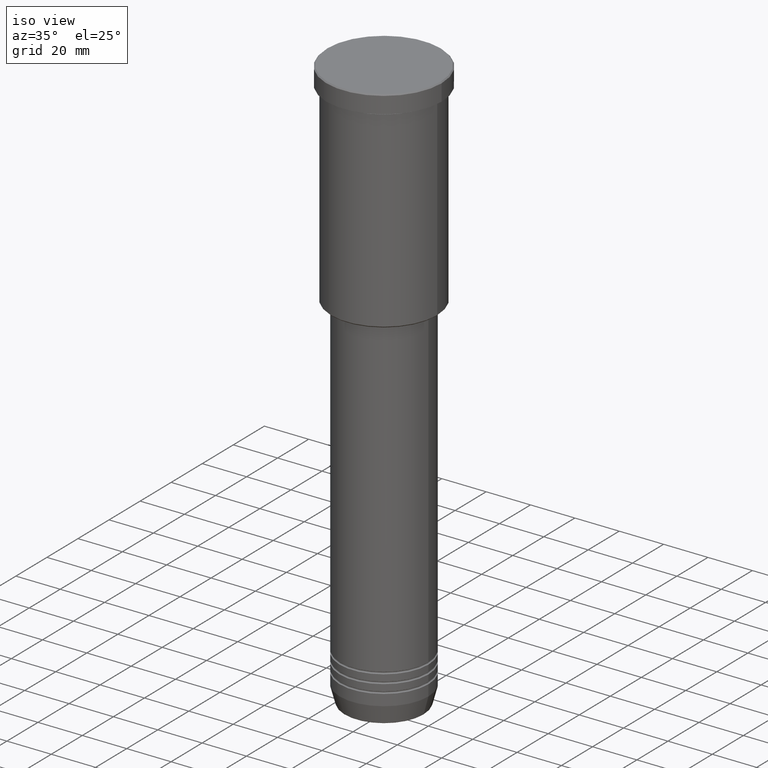
[diagram: clean part render]
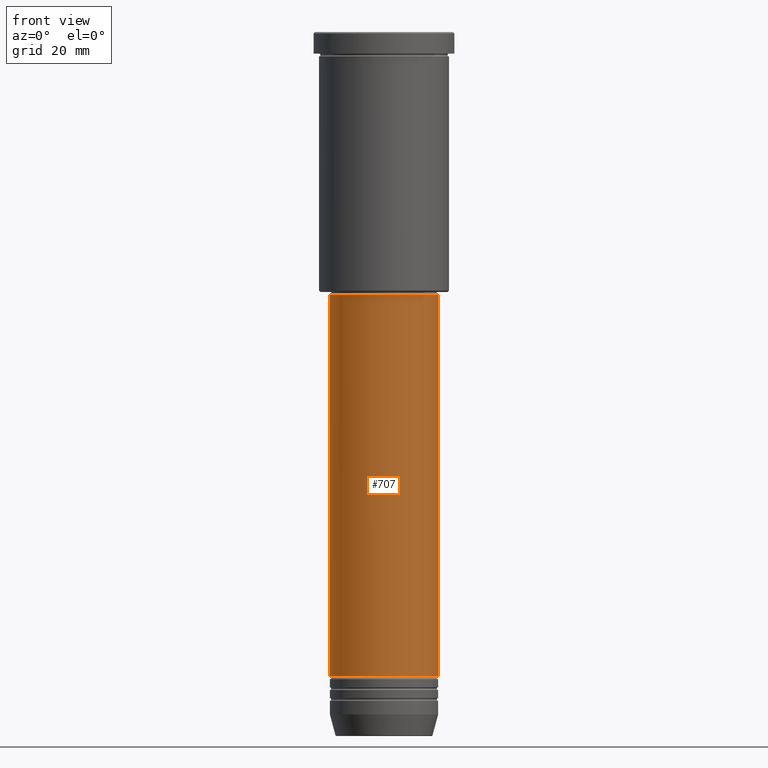
[diagram: tour spotlight — one face highlighted and labeled with its STEP entity id]
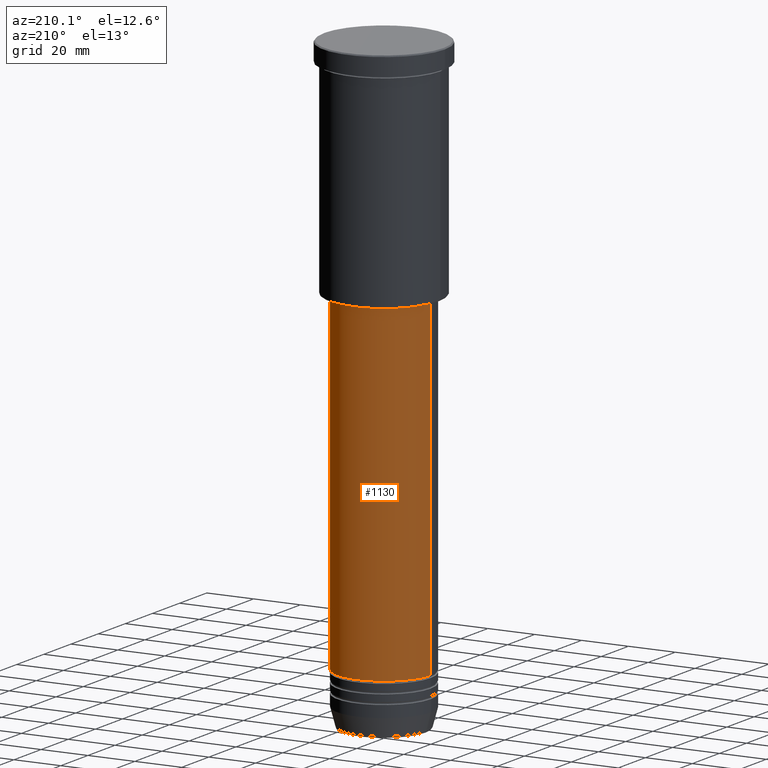
[diagram: tour spotlight — one face highlighted and labeled with its STEP entity id]
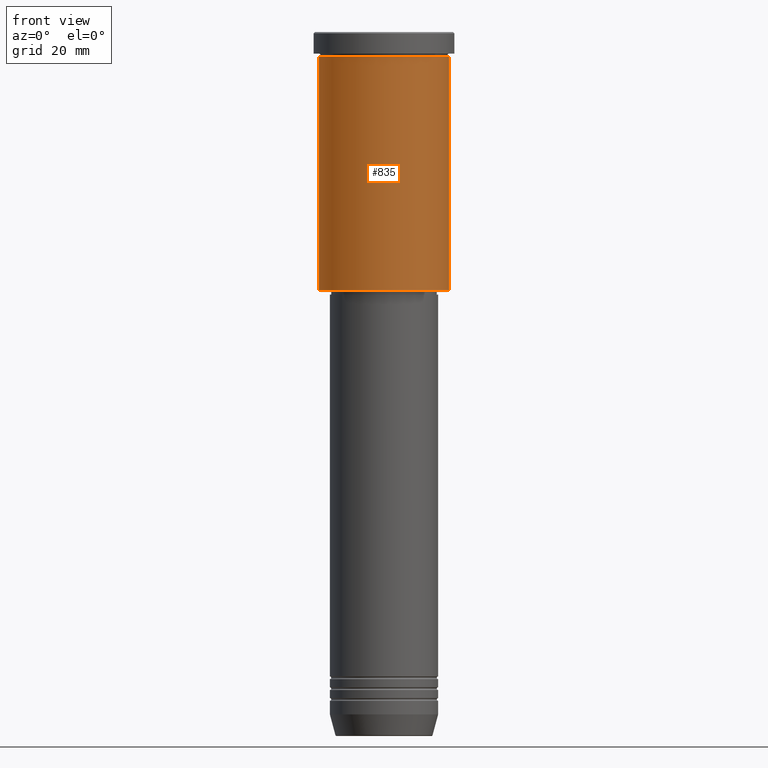
[diagram: tour spotlight — one face highlighted and labeled with its STEP entity id]
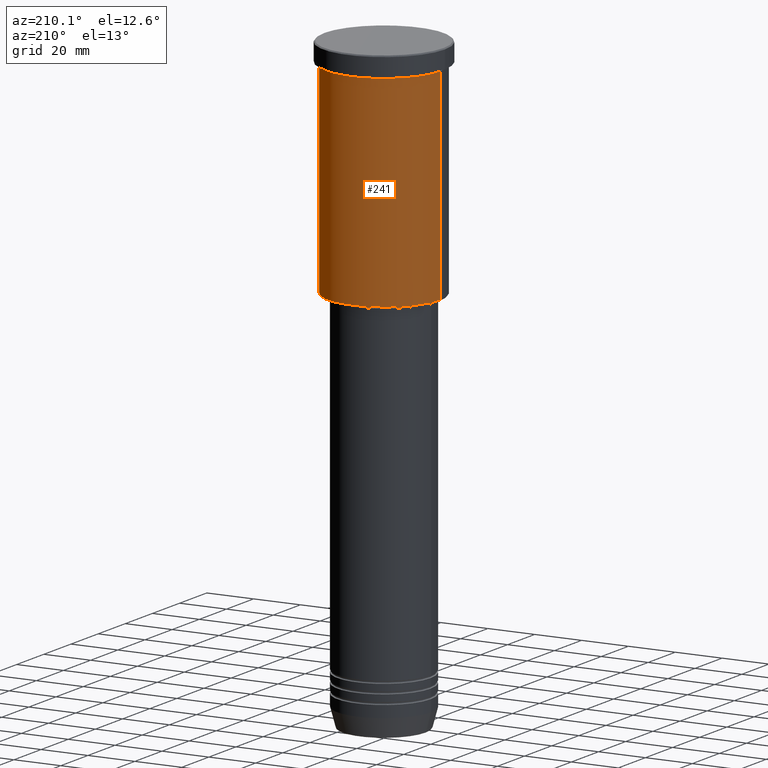
[diagram: tour spotlight — one face highlighted and labeled with its STEP entity id]
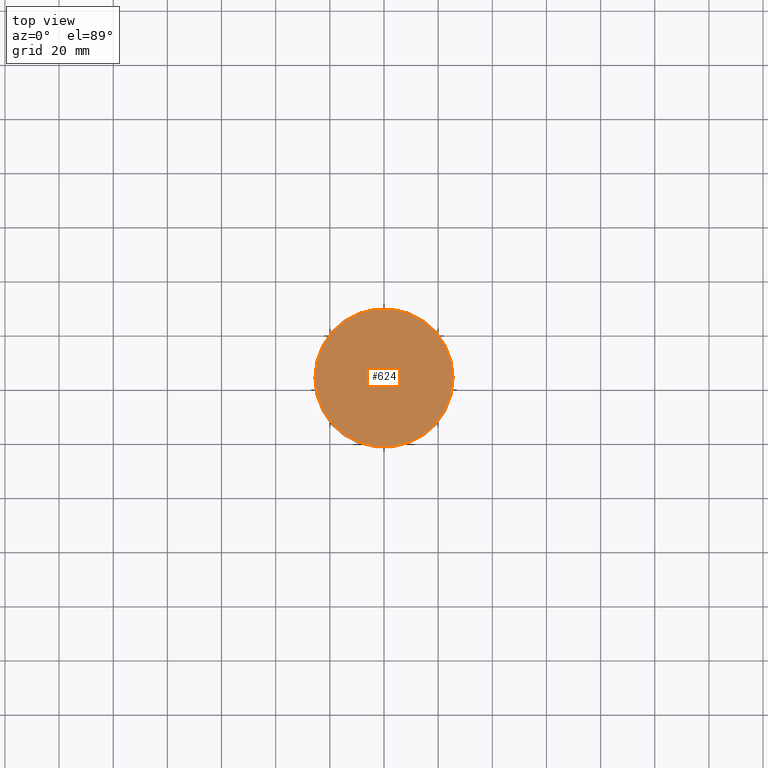
[diagram: tour spotlight — one face highlighted and labeled with its STEP entity id]
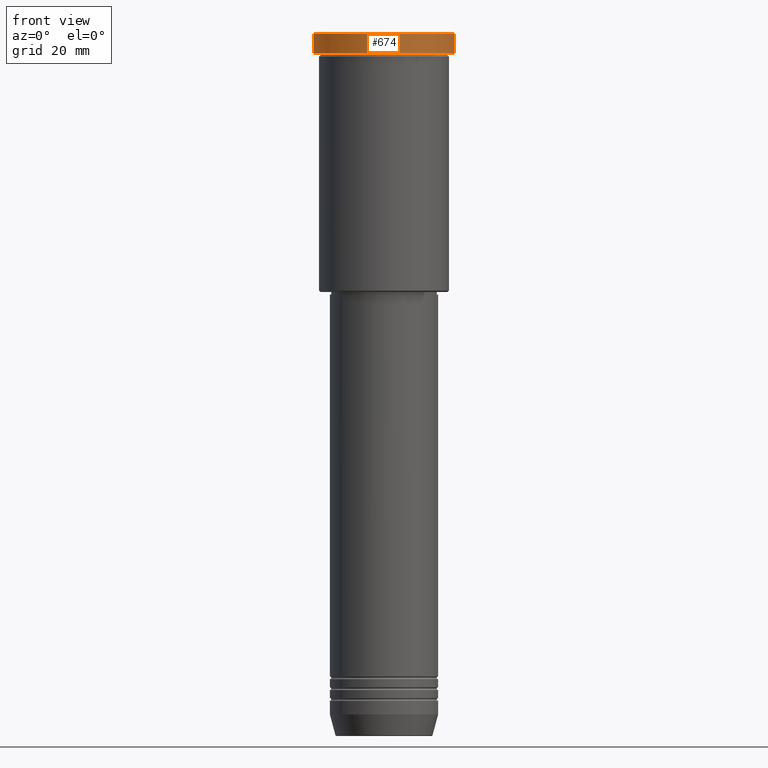
[diagram: tour spotlight — one face highlighted and labeled with its STEP entity id]
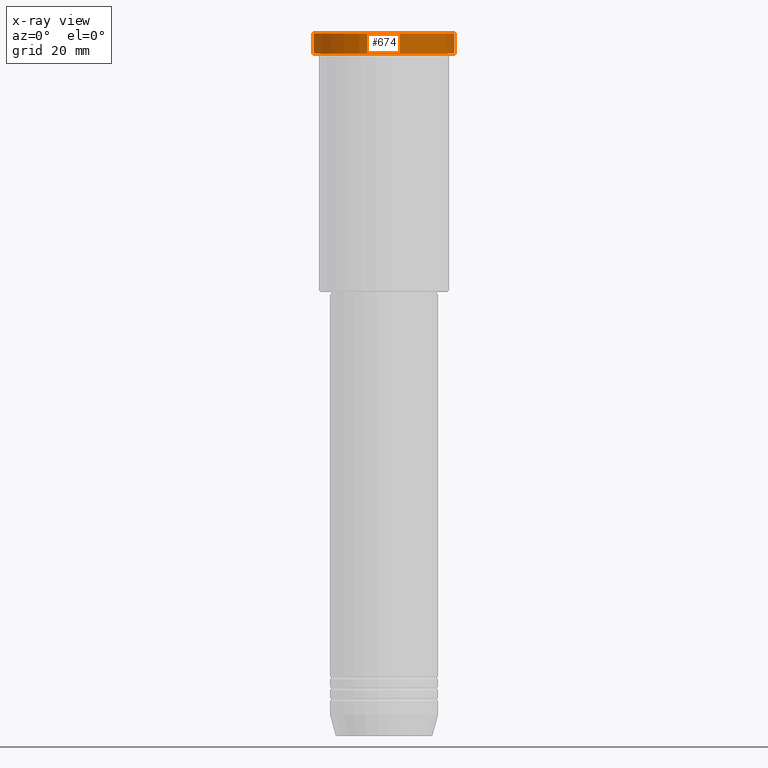
[diagram: x-ray of the same camera — body ghosted, this tour face saturated]
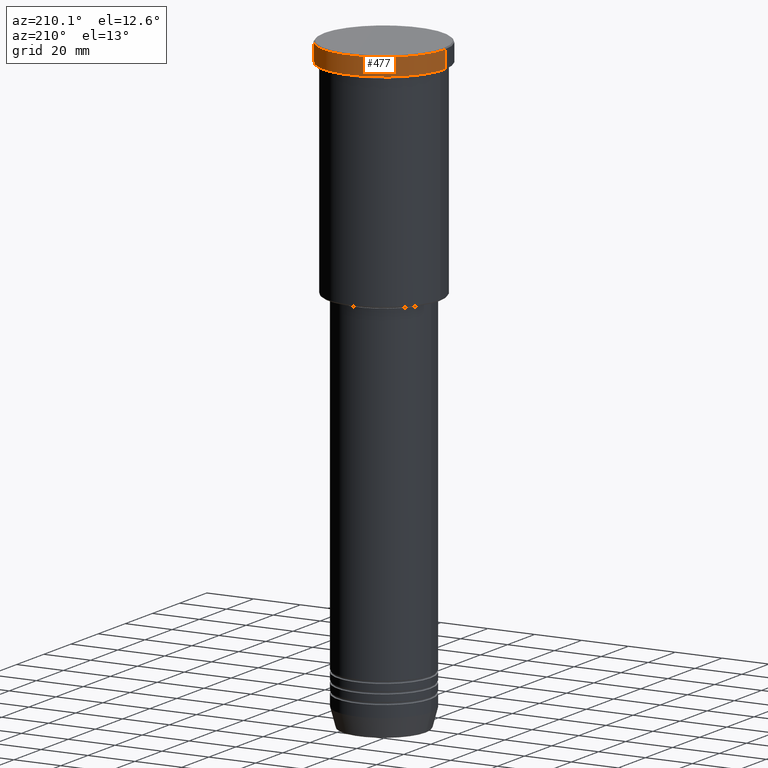
[diagram: tour spotlight — one face highlighted and labeled with its STEP entity id]
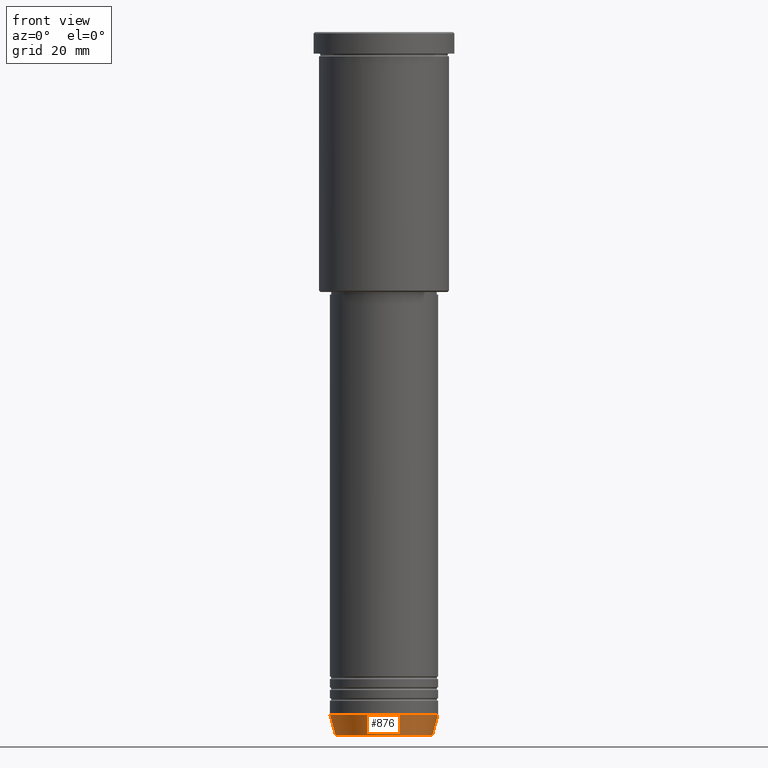
[diagram: tour spotlight — one face highlighted and labeled with its STEP entity id]
A machine part: a face-by-face anatomy tour. The part has 43 B-rep faces; the first image is the clean iso view, then the 8 largest visible faces are spotlighted one at a time (largest first), each with its STEP entity span.

Face 1 — front view, entity #707. In plain terms, the highlighted cylindrical surface (partial cylindrical patch) has radius 20 mm, axis along (-0, -0, 1).
Definition (entity closure, byte-faithful):
#15 = ORIENTED_EDGE ( 'NONE', *, *, #819, .T. ) ;
#46 = DIRECTION ( 'NONE',  ( -0.000000000000000000, -0.000000000000000000, 1.000000000000000000 ) ) ;
#66 = VECTOR ( 'NONE', #617, 1000.000000000000000 ) ;
#104 = ORIENTED_EDGE ( 'NONE', *, *, #726, .F. ) ;
#134 = CARTESIAN_POINT ( 'NONE',  ( 20.00000000000000355, 0.000000000000000000, -238.0000000000000000 ) ) ;
#146 = CARTESIAN_POINT ( 'NONE',  ( -20.00000000000000355, 2.449293598294706907E-15, 0.000000000000000000 ) ) ;
#149 = VERTEX_POINT ( 'NONE', #290 ) ;
#162 = EDGE_LOOP ( 'NONE', ( #622, #15, #245, #104 ) ) ;
#167 = CARTESIAN_POINT ( 'NONE',  ( 0.000000000000000000, 0.000000000000000000, 0.000000000000000000 ) ) ;
#172 = VERTEX_POINT ( 'NONE', #134 ) ;
#201 = CARTESIAN_POINT ( 'NONE',  ( -20.00000000000000355, 2.449293598294706907E-15, -97.00000000000002842 ) ) ;
#245 = ORIENTED_EDGE ( 'NONE', *, *, #1139, .T. ) ;
#251 = CIRCLE ( 'NONE', #504, 20.00000000000000355 ) ;
#290 = CARTESIAN_POINT ( 'NONE',  ( -20.00000000000000355, 2.449293598294706907E-15, -238.0000000000000000 ) ) ;
#346 = CARTESIAN_POINT ( 'NONE',  ( 20.00000000000000355, 0.000000000000000000, 0.000000000000000000 ) ) ;
#443 = AXIS2_PLACEMENT_3D ( 'NONE', #167, #451, #743 ) ;
#451 = DIRECTION ( 'NONE',  ( -0.000000000000000000, -0.000000000000000000, 1.000000000000000000 ) ) ;
#462 = DIRECTION ( 'NONE',  ( -0.000000000000000000, -0.000000000000000000, 1.000000000000000000 ) ) ;
#504 = AXIS2_PLACEMENT_3D ( 'NONE', #821, #462, #727 ) ;
#613 = CIRCLE ( 'NONE', #924, 20.00000000000000355 ) ;
#617 = DIRECTION ( 'NONE',  ( -0.000000000000000000, -0.000000000000000000, 1.000000000000000000 ) ) ;
#622 = ORIENTED_EDGE ( 'NONE', *, *, #1056, .F. ) ;
#639 = CYLINDRICAL_SURFACE ( 'NONE', #443, 20.00000000000000355 ) ;
#642 = LINE ( 'NONE', #346, #66 ) ;
#707 = ADVANCED_FACE ( 'NONE', ( #919 ), #639, .T. ) ;
#726 = EDGE_CURVE ( 'NONE', #905, #773, #251, .T. ) ;
#727 = DIRECTION ( 'NONE',  ( 1.000000000000000000, 0.000000000000000000, 0.000000000000000000 ) ) ;
#743 = DIRECTION ( 'NONE',  ( 1.000000000000000000, 0.000000000000000000, 0.000000000000000000 ) ) ;
#773 = VERTEX_POINT ( 'NONE', #1078 ) ;
#819 = EDGE_CURVE ( 'NONE', #149, #172, #613, .T. ) ;
#821 = CARTESIAN_POINT ( 'NONE',  ( 0.000000000000000000, 0.000000000000000000, -97.00000000000002842 ) ) ;
#844 = CARTESIAN_POINT ( 'NONE',  ( 0.000000000000000000, 0.000000000000000000, -238.0000000000000000 ) ) ;
#865 = LINE ( 'NONE', #146, #1121 ) ;
#905 = VERTEX_POINT ( 'NONE', #201 ) ;
#919 = FACE_OUTER_BOUND ( 'NONE', #162, .T. ) ;
#924 = AXIS2_PLACEMENT_3D ( 'NONE', #844, #1129, #1029 ) ;
#1029 = DIRECTION ( 'NONE',  ( 1.000000000000000000, 0.000000000000000000, 0.000000000000000000 ) ) ;
#1056 = EDGE_CURVE ( 'NONE', #149, #905, #865, .T. ) ;
#1078 = CARTESIAN_POINT ( 'NONE',  ( 20.00000000000000355, 0.000000000000000000, -97.00000000000002842 ) ) ;
#1121 = VECTOR ( 'NONE', #46, 1000.000000000000000 ) ;
#1129 = DIRECTION ( 'NONE',  ( -0.000000000000000000, -0.000000000000000000, 1.000000000000000000 ) ) ;
#1139 = EDGE_CURVE ( 'NONE', #172, #773, #642, .T. ) ;

Face 2 — auxiliary view, entity #1130. In plain terms, the highlighted cylindrical surface (partial cylindrical patch) has radius 20 mm, axis along (-0, -0, 1).
Definition (entity closure, byte-faithful):
#46 = DIRECTION ( 'NONE',  ( -0.000000000000000000, -0.000000000000000000, 1.000000000000000000 ) ) ;
#66 = VECTOR ( 'NONE', #617, 1000.000000000000000 ) ;
#134 = CARTESIAN_POINT ( 'NONE',  ( 20.00000000000000355, 0.000000000000000000, -238.0000000000000000 ) ) ;
#146 = CARTESIAN_POINT ( 'NONE',  ( -20.00000000000000355, 2.449293598294706907E-15, 0.000000000000000000 ) ) ;
#149 = VERTEX_POINT ( 'NONE', #290 ) ;
#159 = ORIENTED_EDGE ( 'NONE', *, *, #934, .T. ) ;
#172 = VERTEX_POINT ( 'NONE', #134 ) ;
#180 = FACE_OUTER_BOUND ( 'NONE', #958, .T. ) ;
#201 = CARTESIAN_POINT ( 'NONE',  ( -20.00000000000000355, 2.449293598294706907E-15, -97.00000000000002842 ) ) ;
#221 = AXIS2_PLACEMENT_3D ( 'NONE', #724, #805, #459 ) ;
#256 = EDGE_CURVE ( 'NONE', #773, #905, #1019, .T. ) ;
#290 = CARTESIAN_POINT ( 'NONE',  ( -20.00000000000000355, 2.449293598294706907E-15, -238.0000000000000000 ) ) ;
#324 = DIRECTION ( 'NONE',  ( -0.000000000000000000, -0.000000000000000000, 1.000000000000000000 ) ) ;
#345 = ORIENTED_EDGE ( 'NONE', *, *, #256, .F. ) ;
#346 = CARTESIAN_POINT ( 'NONE',  ( 20.00000000000000355, 0.000000000000000000, 0.000000000000000000 ) ) ;
#390 = AXIS2_PLACEMENT_3D ( 'NONE', #1143, #792, #523 ) ;
#459 = DIRECTION ( 'NONE',  ( 1.000000000000000000, 0.000000000000000000, 0.000000000000000000 ) ) ;
#514 = DIRECTION ( 'NONE',  ( 1.000000000000000000, 0.000000000000000000, 0.000000000000000000 ) ) ;
#523 = DIRECTION ( 'NONE',  ( 1.000000000000000000, 0.000000000000000000, 0.000000000000000000 ) ) ;
#614 = CIRCLE ( 'NONE', #927, 20.00000000000000355 ) ;
#617 = DIRECTION ( 'NONE',  ( -0.000000000000000000, -0.000000000000000000, 1.000000000000000000 ) ) ;
#642 = LINE ( 'NONE', #346, #66 ) ;
#660 = CARTESIAN_POINT ( 'NONE',  ( 0.000000000000000000, 0.000000000000000000, -238.0000000000000000 ) ) ;
#724 = CARTESIAN_POINT ( 'NONE',  ( 0.000000000000000000, 0.000000000000000000, 0.000000000000000000 ) ) ;
#773 = VERTEX_POINT ( 'NONE', #1078 ) ;
#792 = DIRECTION ( 'NONE',  ( -0.000000000000000000, -0.000000000000000000, 1.000000000000000000 ) ) ;
#805 = DIRECTION ( 'NONE',  ( -0.000000000000000000, -0.000000000000000000, 1.000000000000000000 ) ) ;
#865 = LINE ( 'NONE', #146, #1121 ) ;
#905 = VERTEX_POINT ( 'NONE', #201 ) ;
#922 = ORIENTED_EDGE ( 'NONE', *, *, #1056, .T. ) ;
#927 = AXIS2_PLACEMENT_3D ( 'NONE', #660, #324, #514 ) ;
#934 = EDGE_CURVE ( 'NONE', #172, #149, #614, .T. ) ;
#958 = EDGE_LOOP ( 'NONE', ( #159, #922, #345, #1045 ) ) ;
#989 = CYLINDRICAL_SURFACE ( 'NONE', #221, 20.00000000000000355 ) ;
#1019 = CIRCLE ( 'NONE', #390, 20.00000000000000355 ) ;
#1045 = ORIENTED_EDGE ( 'NONE', *, *, #1139, .F. ) ;
#1056 = EDGE_CURVE ( 'NONE', #149, #905, #865, .T. ) ;
#1078 = CARTESIAN_POINT ( 'NONE',  ( 20.00000000000000355, 0.000000000000000000, -97.00000000000002842 ) ) ;
#1121 = VECTOR ( 'NONE', #46, 1000.000000000000000 ) ;
#1130 = ADVANCED_FACE ( 'NONE', ( #180 ), #989, .T. ) ;
#1139 = EDGE_CURVE ( 'NONE', #172, #773, #642, .T. ) ;
#1143 = CARTESIAN_POINT ( 'NONE',  ( 0.000000000000000000, 0.000000000000000000, -97.00000000000002842 ) ) ;

Face 3 — front view, entity #835. In plain terms, the highlighted cylindrical surface (partial cylindrical patch) has radius 24 mm, axis along (-0, -0, 1).
Definition (entity closure, byte-faithful):
#138 = LINE ( 'NONE', #501, #463 ) ;
#179 = AXIS2_PLACEMENT_3D ( 'NONE', #587, #490, #567 ) ;
#182 = CARTESIAN_POINT ( 'NONE',  ( 24.00000000000000000, 0.000000000000000000, -95.49999999999995737 ) ) ;
#206 = FACE_OUTER_BOUND ( 'NONE', #581, .T. ) ;
#246 = CARTESIAN_POINT ( 'NONE',  ( 0.000000000000000000, 0.000000000000000000, -8.999999999999994671 ) ) ;
#284 = EDGE_CURVE ( 'NONE', #979, #1006, #734, .T. ) ;
#320 = CARTESIAN_POINT ( 'NONE',  ( 0.000000000000000000, 0.000000000000000000, -95.49999999999995737 ) ) ;
#350 = CARTESIAN_POINT ( 'NONE',  ( 24.00000000000000000, 0.000000000000000000, 0.000000000000000000 ) ) ;
#355 = EDGE_CURVE ( 'NONE', #589, #979, #138, .T. ) ;
#393 = CIRCLE ( 'NONE', #1023, 24.00000000000000000 ) ;
#422 = CARTESIAN_POINT ( 'NONE',  ( -24.00000000000000000, 2.939152317953647894E-15, -8.999999999999994671 ) ) ;
#463 = VECTOR ( 'NONE', #870, 1000.000000000000000 ) ;
#490 = DIRECTION ( 'NONE',  ( -0.000000000000000000, -0.000000000000000000, 1.000000000000000000 ) ) ;
#501 = CARTESIAN_POINT ( 'NONE',  ( -24.00000000000000000, 2.939152317953647894E-15, 0.000000000000000000 ) ) ;
#567 = DIRECTION ( 'NONE',  ( 1.000000000000000000, 0.000000000000000000, 0.000000000000000000 ) ) ;
#581 = EDGE_LOOP ( 'NONE', ( #1169, #602, #790, #1176 ) ) ;
#587 = CARTESIAN_POINT ( 'NONE',  ( 0.000000000000000000, 0.000000000000000000, 0.000000000000000000 ) ) ;
#589 = VERTEX_POINT ( 'NONE', #765 ) ;
#602 = ORIENTED_EDGE ( 'NONE', *, *, #992, .T. ) ;
#608 = DIRECTION ( 'NONE',  ( 1.000000000000000000, 0.000000000000000000, 0.000000000000000000 ) ) ;
#715 = DIRECTION ( 'NONE',  ( -0.000000000000000000, -0.000000000000000000, 1.000000000000000000 ) ) ;
#734 = CIRCLE ( 'NONE', #945, 24.00000000000000000 ) ;
#741 = VERTEX_POINT ( 'NONE', #182 ) ;
#765 = CARTESIAN_POINT ( 'NONE',  ( -24.00000000000000000, 2.939152317953647894E-15, -95.49999999999995737 ) ) ;
#770 = EDGE_CURVE ( 'NONE', #741, #1006, #839, .T. ) ;
#789 = DIRECTION ( 'NONE',  ( -0.000000000000000000, -0.000000000000000000, 1.000000000000000000 ) ) ;
#790 = ORIENTED_EDGE ( 'NONE', *, *, #770, .T. ) ;
#795 = VECTOR ( 'NONE', #715, 1000.000000000000000 ) ;
#797 = DIRECTION ( 'NONE',  ( -1.000000000000000000, 0.000000000000000000, 0.000000000000000000 ) ) ;
#835 = ADVANCED_FACE ( 'NONE', ( #206 ), #938, .T. ) ;
#839 = LINE ( 'NONE', #350, #795 ) ;
#870 = DIRECTION ( 'NONE',  ( -0.000000000000000000, -0.000000000000000000, 1.000000000000000000 ) ) ;
#938 = CYLINDRICAL_SURFACE ( 'NONE', #179, 24.00000000000000000 ) ;
#945 = AXIS2_PLACEMENT_3D ( 'NONE', #246, #1068, #608 ) ;
#979 = VERTEX_POINT ( 'NONE', #422 ) ;
#992 = EDGE_CURVE ( 'NONE', #589, #741, #393, .T. ) ;
#1006 = VERTEX_POINT ( 'NONE', #1158 ) ;
#1023 = AXIS2_PLACEMENT_3D ( 'NONE', #320, #789, #797 ) ;
#1068 = DIRECTION ( 'NONE',  ( -0.000000000000000000, -0.000000000000000000, 1.000000000000000000 ) ) ;
#1158 = CARTESIAN_POINT ( 'NONE',  ( 24.00000000000000000, 0.000000000000000000, -8.999999999999994671 ) ) ;
#1169 = ORIENTED_EDGE ( 'NONE', *, *, #355, .F. ) ;
#1176 = ORIENTED_EDGE ( 'NONE', *, *, #284, .F. ) ;

Face 4 — auxiliary view, entity #241. In plain terms, the highlighted cylindrical surface (partial cylindrical patch) has radius 24 mm, axis along (-0, -0, 1).
Definition (entity closure, byte-faithful):
#11 = CIRCLE ( 'NONE', #872, 24.00000000000000000 ) ;
#30 = AXIS2_PLACEMENT_3D ( 'NONE', #430, #144, #786 ) ;
#71 = CYLINDRICAL_SURFACE ( 'NONE', #30, 24.00000000000000000 ) ;
#103 = AXIS2_PLACEMENT_3D ( 'NONE', #601, #683, #1142 ) ;
#138 = LINE ( 'NONE', #501, #463 ) ;
#144 = DIRECTION ( 'NONE',  ( -0.000000000000000000, -0.000000000000000000, 1.000000000000000000 ) ) ;
#182 = CARTESIAN_POINT ( 'NONE',  ( 24.00000000000000000, 0.000000000000000000, -95.49999999999995737 ) ) ;
#241 = ADVANCED_FACE ( 'NONE', ( #888 ), #71, .T. ) ;
#350 = CARTESIAN_POINT ( 'NONE',  ( 24.00000000000000000, 0.000000000000000000, 0.000000000000000000 ) ) ;
#355 = EDGE_CURVE ( 'NONE', #589, #979, #138, .T. ) ;
#422 = CARTESIAN_POINT ( 'NONE',  ( -24.00000000000000000, 2.939152317953647894E-15, -8.999999999999994671 ) ) ;
#430 = CARTESIAN_POINT ( 'NONE',  ( 0.000000000000000000, 0.000000000000000000, 0.000000000000000000 ) ) ;
#454 = DIRECTION ( 'NONE',  ( -0.000000000000000000, -0.000000000000000000, 1.000000000000000000 ) ) ;
#463 = VECTOR ( 'NONE', #870, 1000.000000000000000 ) ;
#501 = CARTESIAN_POINT ( 'NONE',  ( -24.00000000000000000, 2.939152317953647894E-15, 0.000000000000000000 ) ) ;
#589 = VERTEX_POINT ( 'NONE', #765 ) ;
#601 = CARTESIAN_POINT ( 'NONE',  ( 0.000000000000000000, 0.000000000000000000, -95.49999999999995737 ) ) ;
#626 = ORIENTED_EDGE ( 'NONE', *, *, #940, .T. ) ;
#627 = DIRECTION ( 'NONE',  ( 1.000000000000000000, 0.000000000000000000, 0.000000000000000000 ) ) ;
#683 = DIRECTION ( 'NONE',  ( -0.000000000000000000, -0.000000000000000000, 1.000000000000000000 ) ) ;
#715 = DIRECTION ( 'NONE',  ( -0.000000000000000000, -0.000000000000000000, 1.000000000000000000 ) ) ;
#729 = EDGE_LOOP ( 'NONE', ( #626, #885, #1151, #1102 ) ) ;
#741 = VERTEX_POINT ( 'NONE', #182 ) ;
#765 = CARTESIAN_POINT ( 'NONE',  ( -24.00000000000000000, 2.939152317953647894E-15, -95.49999999999995737 ) ) ;
#770 = EDGE_CURVE ( 'NONE', #741, #1006, #839, .T. ) ;
#786 = DIRECTION ( 'NONE',  ( 1.000000000000000000, 0.000000000000000000, 0.000000000000000000 ) ) ;
#795 = VECTOR ( 'NONE', #715, 1000.000000000000000 ) ;
#839 = LINE ( 'NONE', #350, #795 ) ;
#870 = DIRECTION ( 'NONE',  ( -0.000000000000000000, -0.000000000000000000, 1.000000000000000000 ) ) ;
#872 = AXIS2_PLACEMENT_3D ( 'NONE', #1103, #454, #627 ) ;
#885 = ORIENTED_EDGE ( 'NONE', *, *, #355, .T. ) ;
#888 = FACE_OUTER_BOUND ( 'NONE', #729, .T. ) ;
#940 = EDGE_CURVE ( 'NONE', #741, #589, #1156, .T. ) ;
#979 = VERTEX_POINT ( 'NONE', #422 ) ;
#1006 = VERTEX_POINT ( 'NONE', #1158 ) ;
#1102 = ORIENTED_EDGE ( 'NONE', *, *, #770, .F. ) ;
#1103 = CARTESIAN_POINT ( 'NONE',  ( 0.000000000000000000, 0.000000000000000000, -8.999999999999994671 ) ) ;
#1142 = DIRECTION ( 'NONE',  ( -1.000000000000000000, 0.000000000000000000, 0.000000000000000000 ) ) ;
#1151 = ORIENTED_EDGE ( 'NONE', *, *, #1173, .F. ) ;
#1156 = CIRCLE ( 'NONE', #103, 24.00000000000000000 ) ;
#1158 = CARTESIAN_POINT ( 'NONE',  ( 24.00000000000000000, 0.000000000000000000, -8.999999999999994671 ) ) ;
#1173 = EDGE_CURVE ( 'NONE', #1006, #979, #11, .T. ) ;

Face 5 — top view, entity #624. In plain terms, the highlighted planar face has unit normal (0, -0, 1).
Definition (entity closure, byte-faithful):
#12 = EDGE_LOOP ( 'NONE', ( #967, #897 ) ) ;
#17 = VERTEX_POINT ( 'NONE', #921 ) ;
#19 = FACE_OUTER_BOUND ( 'NONE', #12, .T. ) ;
#55 = EDGE_CURVE ( 'NONE', #17, #898, #440, .T. ) ;
#141 = AXIS2_PLACEMENT_3D ( 'NONE', #186, #276, #366 ) ;
#186 = CARTESIAN_POINT ( 'NONE',  ( 0.000000000000000000, 0.000000000000000000, 0.000000000000000000 ) ) ;
#193 = AXIS2_PLACEMENT_3D ( 'NONE', #910, #1004, #546 ) ;
#276 = DIRECTION ( 'NONE',  ( 0.000000000000000000, -0.000000000000000000, 1.000000000000000000 ) ) ;
#366 = DIRECTION ( 'NONE',  ( 1.000000000000000000, 0.000000000000000000, 0.000000000000000000 ) ) ;
#370 = CIRCLE ( 'NONE', #520, 25.49999999999994316 ) ;
#383 = DIRECTION ( 'NONE',  ( 1.000000000000000000, 0.000000000000000000, 0.000000000000000000 ) ) ;
#440 = CIRCLE ( 'NONE', #193, 25.49999999999994316 ) ;
#475 = CARTESIAN_POINT ( 'NONE',  ( 0.000000000000000000, 0.000000000000000000, 0.000000000000000000 ) ) ;
#520 = AXIS2_PLACEMENT_3D ( 'NONE', #475, #763, #383 ) ;
#546 = DIRECTION ( 'NONE',  ( 1.000000000000000000, 0.000000000000000000, 0.000000000000000000 ) ) ;
#624 = ADVANCED_FACE ( 'NONE', ( #19 ), #907, .T. ) ;
#763 = DIRECTION ( 'NONE',  ( -0.000000000000000000, -0.000000000000000000, 1.000000000000000000 ) ) ;
#802 = EDGE_CURVE ( 'NONE', #898, #17, #370, .T. ) ;
#897 = ORIENTED_EDGE ( 'NONE', *, *, #802, .T. ) ;
#898 = VERTEX_POINT ( 'NONE', #1120 ) ;
#907 = PLANE ( 'NONE',  #141 ) ;
#910 = CARTESIAN_POINT ( 'NONE',  ( 0.000000000000000000, 0.000000000000000000, 0.000000000000000000 ) ) ;
#921 = CARTESIAN_POINT ( 'NONE',  ( -25.49999999999994316, 0.000000000000000000, 0.000000000000000000 ) ) ;
#967 = ORIENTED_EDGE ( 'NONE', *, *, #55, .T. ) ;
#1004 = DIRECTION ( 'NONE',  ( -0.000000000000000000, -0.000000000000000000, 1.000000000000000000 ) ) ;
#1120 = CARTESIAN_POINT ( 'NONE',  ( 25.49999999999994316, 3.153465507804430854E-15, 0.000000000000000000 ) ) ;

Face 6 — front view, entity #674. An x-ray twin of the same camera follows (body ghosted, this face saturated) — the face is partly hidden behind the body. In plain terms, the highlighted cylindrical surface (partial cylindrical patch) has radius 26 mm, axis along (-0, -0, 1).
Definition (entity closure, byte-faithful):
#65 = CARTESIAN_POINT ( 'NONE',  ( 0.000000000000000000, 0.000000000000000000, -7.999999999999992895 ) ) ;
#79 = CIRCLE ( 'NONE', #155, 26.00000000000000000 ) ;
#86 = VERTEX_POINT ( 'NONE', #558 ) ;
#139 = ORIENTED_EDGE ( 'NONE', *, *, #262, .T. ) ;
#155 = AXIS2_PLACEMENT_3D ( 'NONE', #65, #1064, #157 ) ;
#157 = DIRECTION ( 'NONE',  ( 1.000000000000000000, 0.000000000000000000, 0.000000000000000000 ) ) ;
#173 = CYLINDRICAL_SURFACE ( 'NONE', #1119, 26.00000000000000000 ) ;
#191 = DIRECTION ( 'NONE',  ( 1.000000000000000000, 0.000000000000000000, 0.000000000000000000 ) ) ;
#226 = VERTEX_POINT ( 'NONE', #599 ) ;
#262 = EDGE_CURVE ( 'NONE', #1167, #86, #1147, .T. ) ;
#266 = DIRECTION ( 'NONE',  ( 0.000000000000000000, 0.000000000000000000, -1.000000000000000000 ) ) ;
#318 = EDGE_CURVE ( 'NONE', #411, #1167, #79, .T. ) ;
#352 = AXIS2_PLACEMENT_3D ( 'NONE', #1094, #266, #916 ) ;
#411 = VERTEX_POINT ( 'NONE', #982 ) ;
#431 = EDGE_LOOP ( 'NONE', ( #647, #527, #139, #1087 ) ) ;
#527 = ORIENTED_EDGE ( 'NONE', *, *, #318, .T. ) ;
#528 = CARTESIAN_POINT ( 'NONE',  ( 26.00000000000000000, 0.000000000000000000, -7.999999999999992895 ) ) ;
#536 = CARTESIAN_POINT ( 'NONE',  ( 0.000000000000000000, 0.000000000000000000, 0.000000000000000000 ) ) ;
#541 = EDGE_CURVE ( 'NONE', #411, #226, #563, .T. ) ;
#556 = CARTESIAN_POINT ( 'NONE',  ( -26.00000000000000000, 3.184081677783118191E-15, 0.000000000000000000 ) ) ;
#558 = CARTESIAN_POINT ( 'NONE',  ( 26.00000000000000000, 0.000000000000000000, -0.5000000000000247580 ) ) ;
#563 = LINE ( 'NONE', #556, #712 ) ;
#599 = CARTESIAN_POINT ( 'NONE',  ( -26.00000000000000000, 3.184081677783118191E-15, -0.5000000000000247580 ) ) ;
#647 = ORIENTED_EDGE ( 'NONE', *, *, #541, .F. ) ;
#651 = VECTOR ( 'NONE', #1051, 1000.000000000000000 ) ;
#674 = ADVANCED_FACE ( 'NONE', ( #1001 ), #173, .T. ) ;
#676 = CIRCLE ( 'NONE', #352, 26.00000000000000000 ) ;
#712 = VECTOR ( 'NONE', #1126, 1000.000000000000000 ) ;
#735 = DIRECTION ( 'NONE',  ( -0.000000000000000000, -0.000000000000000000, 1.000000000000000000 ) ) ;
#916 = DIRECTION ( 'NONE',  ( 1.000000000000000000, 0.000000000000000000, 0.000000000000000000 ) ) ;
#982 = CARTESIAN_POINT ( 'NONE',  ( -26.00000000000000000, 3.184081677783118191E-15, -7.999999999999992895 ) ) ;
#1001 = FACE_OUTER_BOUND ( 'NONE', #431, .T. ) ;
#1051 = DIRECTION ( 'NONE',  ( -0.000000000000000000, -0.000000000000000000, 1.000000000000000000 ) ) ;
#1064 = DIRECTION ( 'NONE',  ( -0.000000000000000000, -0.000000000000000000, 1.000000000000000000 ) ) ;
#1087 = ORIENTED_EDGE ( 'NONE', *, *, #1089, .T. ) ;
#1089 = EDGE_CURVE ( 'NONE', #86, #226, #676, .T. ) ;
#1094 = CARTESIAN_POINT ( 'NONE',  ( 0.000000000000000000, 0.000000000000000000, -0.5000000000000247580 ) ) ;
#1119 = AXIS2_PLACEMENT_3D ( 'NONE', #536, #735, #191 ) ;
#1126 = DIRECTION ( 'NONE',  ( -0.000000000000000000, -0.000000000000000000, 1.000000000000000000 ) ) ;
#1147 = LINE ( 'NONE', #1155, #651 ) ;
#1155 = CARTESIAN_POINT ( 'NONE',  ( 26.00000000000000000, 0.000000000000000000, 0.000000000000000000 ) ) ;
#1167 = VERTEX_POINT ( 'NONE', #528 ) ;

Face 7 — auxiliary view, entity #477. In plain terms, the highlighted cylindrical surface (partial cylindrical patch) has radius 26 mm, axis along (-0, -0, 1).
Definition (entity closure, byte-faithful):
#86 = VERTEX_POINT ( 'NONE', #558 ) ;
#93 = DIRECTION ( 'NONE',  ( -0.000000000000000000, -0.000000000000000000, 1.000000000000000000 ) ) ;
#148 = DIRECTION ( 'NONE',  ( 1.000000000000000000, 0.000000000000000000, 0.000000000000000000 ) ) ;
#152 = DIRECTION ( 'NONE',  ( 0.000000000000000000, 0.000000000000000000, -1.000000000000000000 ) ) ;
#176 = FACE_OUTER_BOUND ( 'NONE', #1179, .T. ) ;
#198 = CIRCLE ( 'NONE', #1097, 26.00000000000000000 ) ;
#214 = EDGE_CURVE ( 'NONE', #226, #86, #518, .T. ) ;
#226 = VERTEX_POINT ( 'NONE', #599 ) ;
#258 = DIRECTION ( 'NONE',  ( 1.000000000000000000, 0.000000000000000000, 0.000000000000000000 ) ) ;
#262 = EDGE_CURVE ( 'NONE', #1167, #86, #1147, .T. ) ;
#344 = CARTESIAN_POINT ( 'NONE',  ( 0.000000000000000000, 0.000000000000000000, 0.000000000000000000 ) ) ;
#411 = VERTEX_POINT ( 'NONE', #982 ) ;
#441 = AXIS2_PLACEMENT_3D ( 'NONE', #855, #152, #148 ) ;
#469 = ORIENTED_EDGE ( 'NONE', *, *, #214, .T. ) ;
#477 = ADVANCED_FACE ( 'NONE', ( #176 ), #1079, .T. ) ;
#503 = ORIENTED_EDGE ( 'NONE', *, *, #541, .T. ) ;
#510 = CARTESIAN_POINT ( 'NONE',  ( 0.000000000000000000, 0.000000000000000000, -7.999999999999992895 ) ) ;
#518 = CIRCLE ( 'NONE', #441, 26.00000000000000000 ) ;
#528 = CARTESIAN_POINT ( 'NONE',  ( 26.00000000000000000, 0.000000000000000000, -7.999999999999992895 ) ) ;
#541 = EDGE_CURVE ( 'NONE', #411, #226, #563, .T. ) ;
#556 = CARTESIAN_POINT ( 'NONE',  ( -26.00000000000000000, 3.184081677783118191E-15, 0.000000000000000000 ) ) ;
#558 = CARTESIAN_POINT ( 'NONE',  ( 26.00000000000000000, 0.000000000000000000, -0.5000000000000247580 ) ) ;
#563 = LINE ( 'NONE', #556, #712 ) ;
#599 = CARTESIAN_POINT ( 'NONE',  ( -26.00000000000000000, 3.184081677783118191E-15, -0.5000000000000247580 ) ) ;
#651 = VECTOR ( 'NONE', #1051, 1000.000000000000000 ) ;
#712 = VECTOR ( 'NONE', #1126, 1000.000000000000000 ) ;
#855 = CARTESIAN_POINT ( 'NONE',  ( 0.000000000000000000, 0.000000000000000000, -0.5000000000000247580 ) ) ;
#879 = DIRECTION ( 'NONE',  ( -0.000000000000000000, -0.000000000000000000, 1.000000000000000000 ) ) ;
#887 = AXIS2_PLACEMENT_3D ( 'NONE', #344, #93, #258 ) ;
#889 = ORIENTED_EDGE ( 'NONE', *, *, #262, .F. ) ;
#982 = CARTESIAN_POINT ( 'NONE',  ( -26.00000000000000000, 3.184081677783118191E-15, -7.999999999999992895 ) ) ;
#1005 = DIRECTION ( 'NONE',  ( 1.000000000000000000, 0.000000000000000000, 0.000000000000000000 ) ) ;
#1051 = DIRECTION ( 'NONE',  ( -0.000000000000000000, -0.000000000000000000, 1.000000000000000000 ) ) ;
#1075 = EDGE_CURVE ( 'NONE', #1167, #411, #198, .T. ) ;
#1079 = CYLINDRICAL_SURFACE ( 'NONE', #887, 26.00000000000000000 ) ;
#1096 = ORIENTED_EDGE ( 'NONE', *, *, #1075, .T. ) ;
#1097 = AXIS2_PLACEMENT_3D ( 'NONE', #510, #879, #1005 ) ;
#1126 = DIRECTION ( 'NONE',  ( -0.000000000000000000, -0.000000000000000000, 1.000000000000000000 ) ) ;
#1147 = LINE ( 'NONE', #1155, #651 ) ;
#1155 = CARTESIAN_POINT ( 'NONE',  ( 26.00000000000000000, 0.000000000000000000, 0.000000000000000000 ) ) ;
#1167 = VERTEX_POINT ( 'NONE', #528 ) ;
#1179 = EDGE_LOOP ( 'NONE', ( #1096, #503, #469, #889 ) ) ;

Face 8 — front view, entity #876. In plain terms, the highlighted conical surface has half-angle 15 deg.
Definition (entity closure, byte-faithful):
#13 = DIRECTION ( 'NONE',  ( 1.000000000000000000, 0.000000000000000000, 0.000000000000000000 ) ) ;
#48 = AXIS2_PLACEMENT_3D ( 'NONE', #833, #815, #13 ) ;
#76 = VERTEX_POINT ( 'NONE', #478 ) ;
#84 = AXIS2_PLACEMENT_3D ( 'NONE', #849, #1125, #402 ) ;
#119 = DIRECTION ( 'NONE',  ( 1.000000000000000000, 0.000000000000000000, 0.000000000000000000 ) ) ;
#150 = LINE ( 'NONE', #1061, #737 ) ;
#156 = VECTOR ( 'NONE', #1035, 1000.000000000000114 ) ;
#190 = EDGE_CURVE ( 'NONE', #753, #76, #733, .T. ) ;
#240 = VERTEX_POINT ( 'NONE', #511 ) ;
#309 = DIRECTION ( 'NONE',  ( -0.000000000000000000, -0.000000000000000000, 1.000000000000000000 ) ) ;
#313 = CIRCLE ( 'NONE', #48, 20.00000000000000355 ) ;
#402 = DIRECTION ( 'NONE',  ( 1.000000000000000000, 0.000000000000000000, 0.000000000000000000 ) ) ;
#406 = CARTESIAN_POINT ( 'NONE',  ( 20.00000000000000355, 0.000000000000000000, -252.0000000000000000 ) ) ;
#478 = CARTESIAN_POINT ( 'NONE',  ( 17.95570587970608045, 0.000000000000000000, -259.6294095225512706 ) ) ;
#511 = CARTESIAN_POINT ( 'NONE',  ( -20.00000000000000355, 2.449293598294706907E-15, -252.0000000000000000 ) ) ;
#553 = CARTESIAN_POINT ( 'NONE',  ( 20.00000000000000355, 0.000000000000000000, -252.0000000000000000 ) ) ;
#594 = ORIENTED_EDGE ( 'NONE', *, *, #190, .T. ) ;
#641 = VERTEX_POINT ( 'NONE', #553 ) ;
#733 = CIRCLE ( 'NONE', #1117, 17.95570587970608045 ) ;
#737 = VECTOR ( 'NONE', #1066, 1000.000000000000114 ) ;
#739 = ORIENTED_EDGE ( 'NONE', *, *, #868, .T. ) ;
#752 = EDGE_CURVE ( 'NONE', #240, #641, #313, .T. ) ;
#753 = VERTEX_POINT ( 'NONE', #1013 ) ;
#774 = FACE_OUTER_BOUND ( 'NONE', #818, .T. ) ;
#806 = ORIENTED_EDGE ( 'NONE', *, *, #960, .F. ) ;
#815 = DIRECTION ( 'NONE',  ( -0.000000000000000000, -0.000000000000000000, 1.000000000000000000 ) ) ;
#818 = EDGE_LOOP ( 'NONE', ( #806, #594, #739, #1141 ) ) ;
#833 = CARTESIAN_POINT ( 'NONE',  ( 0.000000000000000000, 0.000000000000000000, -252.0000000000000000 ) ) ;
#849 = CARTESIAN_POINT ( 'NONE',  ( 0.000000000000000000, 0.000000000000000000, -252.0000000000000000 ) ) ;
#868 = EDGE_CURVE ( 'NONE', #76, #641, #1021, .T. ) ;
#876 = ADVANCED_FACE ( 'NONE', ( #774 ), #906, .T. ) ;
#906 = CONICAL_SURFACE ( 'NONE', #84, 20.00000000000000355, 0.2617993877991499629 ) ;
#960 = EDGE_CURVE ( 'NONE', #753, #240, #150, .T. ) ;
#1013 = CARTESIAN_POINT ( 'NONE',  ( -17.95570587970608045, 2.324116685748021371E-15, -259.6294095225512706 ) ) ;
#1021 = LINE ( 'NONE', #406, #156 ) ;
#1035 = DIRECTION ( 'NONE',  ( 0.2588190451025212391, 0.000000000000000000, 0.9659258262890680902 ) ) ;
#1061 = CARTESIAN_POINT ( 'NONE',  ( -20.00000000000000355, 2.449293598294706907E-15, -252.0000000000000000 ) ) ;
#1066 = DIRECTION ( 'NONE',  ( -0.2588190451025212391, 3.169619151431771721E-17, 0.9659258262890680902 ) ) ;
#1117 = AXIS2_PLACEMENT_3D ( 'NONE', #1131, #309, #119 ) ;
#1125 = DIRECTION ( 'NONE',  ( -0.000000000000000000, -0.000000000000000000, 1.000000000000000000 ) ) ;
#1131 = CARTESIAN_POINT ( 'NONE',  ( 0.000000000000000000, 0.000000000000000000, -259.6294095225512706 ) ) ;
#1141 = ORIENTED_EDGE ( 'NONE', *, *, #752, .F. ) ;